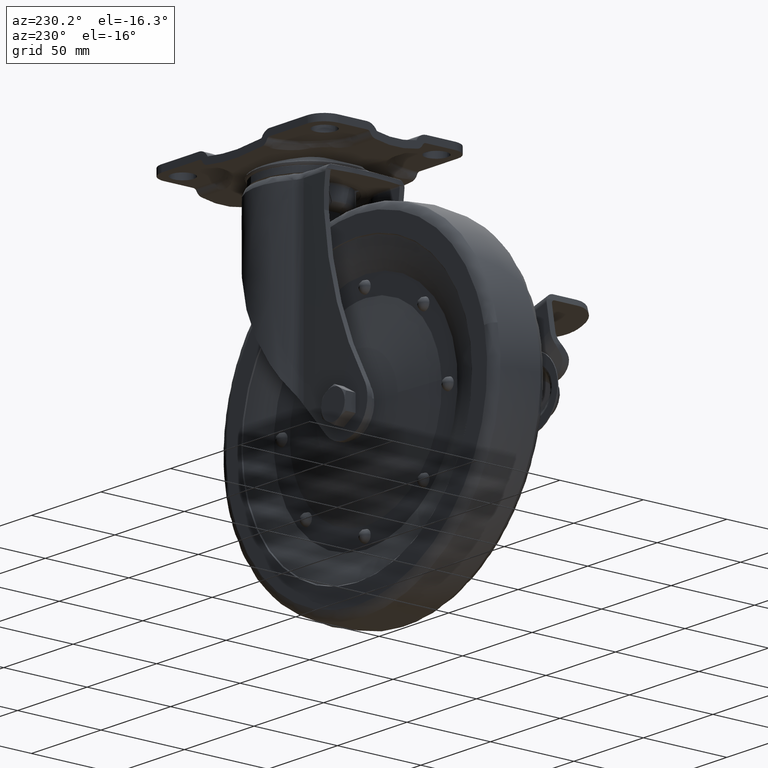
[diagram: clean part render]
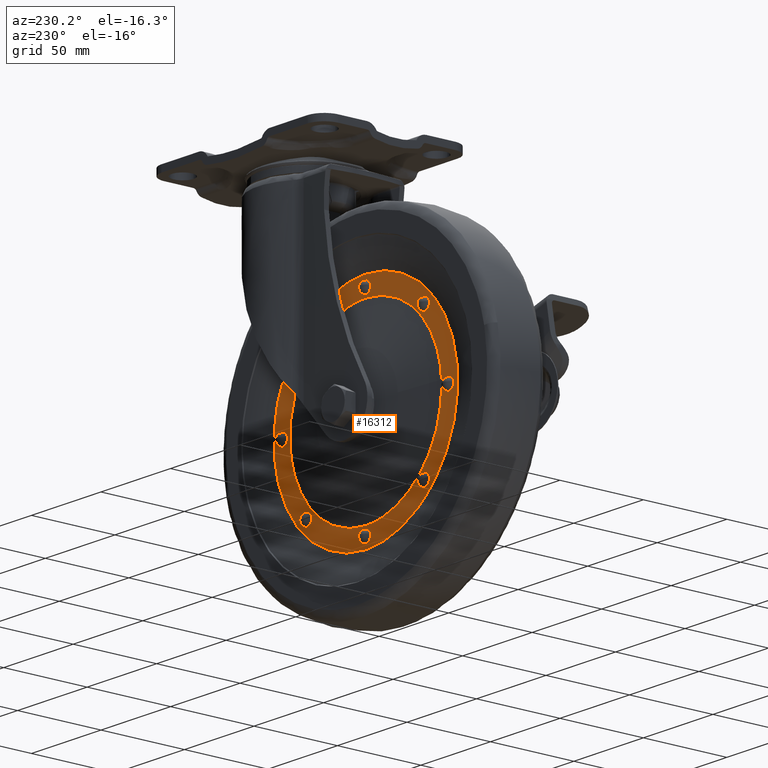
[diagram: same view with one face highlighted and labeled with its STEP entity id]
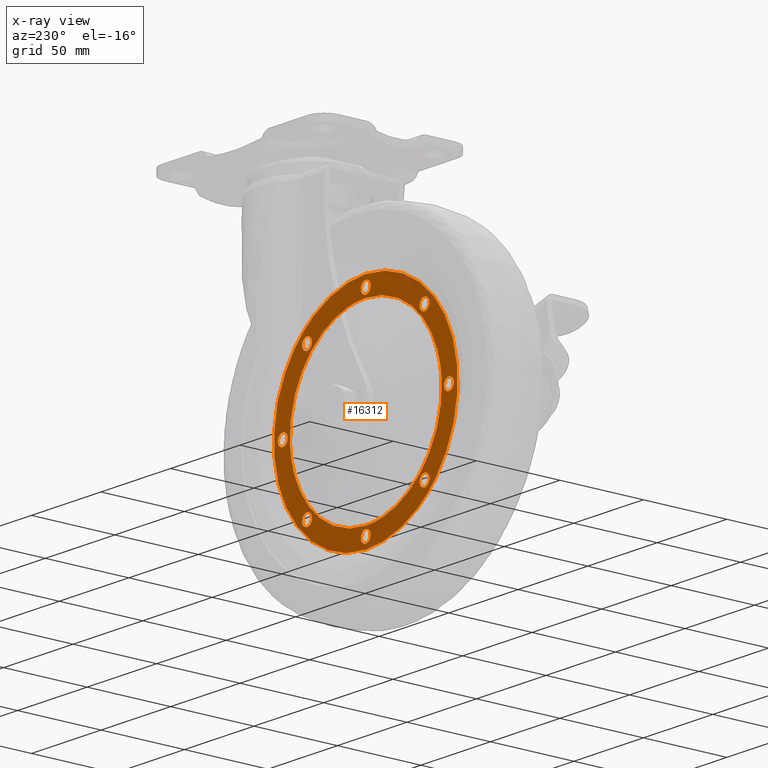
[diagram: x-ray of the same camera — body ghosted, the highlighted face saturated]
A machine part, auxiliary view. The second image highlights one B-rep face of the part: STEP entity #16312.
The next image is the same camera in x-ray: the body ghosted, the highlighted face saturated — about 0% of this face is hidden behind the body in this view.
In plain terms, the highlighted face is a freeform B-spline surface patch.
Its self-contained STEP definition (entity closure, byte-faithful):
#15367=CARTESIAN_POINT('',(-90.496761172573656,10.500000000502331,-190.165149470088610));
#15368=VERTEX_POINT('',#15367);
#15382=CARTESIAN_POINT('',(-53.0,10.499999999999950,-201.829733000000000));
#15383=VERTEX_POINT('',#15382);
#15384=CARTESIAN_POINT('',(-90.496761172573670,10.500000000502334,-190.165149470088690));
#15385=CARTESIAN_POINT('',(-73.562704073049034,10.500000000251145,-201.829733000378500));
#15386=CARTESIAN_POINT('',(-53.0,10.499999999999950,-201.829733000000000));
#15394=(BOUNDED_CURVE()B_SPLINE_CURVE(2,(#15384,#15385,#15386),.UNSPECIFIED.,.F.,.U.)B_SPLINE_CURVE_WITH_KNOTS((3,3),(0.902570046491187,1.0),.UNSPECIFIED.)CURVE()GEOMETRIC_REPRESENTATION_ITEM()RATIONAL_B_SPLINE_CURVE((0.860677560885636,0.885853709231835,1.0))REPRESENTATION_ITEM(''));
#15395=EDGE_CURVE('',#15368,#15383,#15394,.T.);
#15397=CARTESIAN_POINT('',(-15.503238827426349,10.500000000502331,-81.293316529911337));
#15398=VERTEX_POINT('',#15397);
#15399=CARTESIAN_POINT('',(-53.0,10.499999999999950,-201.829733000000000));
#15400=CARTESIAN_POINT('',(-50.269054665054853,10.500000000003190,-201.829771764555890));
#15401=CARTESIAN_POINT('',(-43.824005123820349,10.500000000012310,-201.429973356704690));
#15402=CARTESIAN_POINT('',(-34.492506428127442,10.500000000030839,-199.458430966099600));
#15403=CARTESIAN_POINT('',(-25.992694900659981,10.500000000053120,-196.240142842709300));
#15404=CARTESIAN_POINT('',(-19.600385566640099,10.500000000073440,-192.884544980867190));
#15405=CARTESIAN_POINT('',(-13.921193543899671,10.500000000094181,-189.183337685738790));
#15406=CARTESIAN_POINT('',(-8.557102878133071,10.500000000117071,-184.852469463128500));
#15407=CARTESIAN_POINT('',(-2.570537193624882,10.500000000147111,-178.771452854008400));
#15408=CARTESIAN_POINT('',(2.230199464589279,10.500000000177289,-172.372667557193890));
#15409=CARTESIAN_POINT('',(6.718797275844756,10.500000000212429,-164.483234769258700));
#15410=CARTESIAN_POINT('',(9.849734052629962,10.500000000245080,-156.884303119978400));
#15411=CARTESIAN_POINT('',(12.196426455835301,10.500000000282430,-147.770352042733210));
#15412=CARTESIAN_POINT('',(13.190649145855421,10.500000000315550,-139.394591694129500));
#15413=CARTESIAN_POINT('',(13.067623503837970,10.500000000350591,-130.095061363220400));
#15414=CARTESIAN_POINT('',(11.941013149677611,10.500000000377741,-122.618401140108200));
#15415=CARTESIAN_POINT('',(9.947209768489612,10.500000000403480,-115.231434734829510));
#15416=CARTESIAN_POINT('',(7.303039678046674,10.500000000427120,-108.158738421718790));
#15417=CARTESIAN_POINT('',(3.509790566991151,10.500000000449480,-101.117540916731100));
#15418=CARTESIAN_POINT('',(-1.415422792040370,10.500000000470390,-94.154210183403663));
#15419=CARTESIAN_POINT('',(-7.272057637022831,10.500000000487400,-87.637604030086663));
#15420=CARTESIAN_POINT('',(-12.534348382861610,10.500000000497989,-83.338022490631317));
#15421=CARTESIAN_POINT('',(-15.503238827426349,10.500000000502331,-81.293316529911337));
#15422=B_SPLINE_CURVE_WITH_KNOTS('',3,(#15399,#15400,#15401,#15402,#15403,#15404,#15405,#15406,#15407,#15408,#15409,#15410,#15411,#15412,#15413,#15414,#15415,#15416,#15417,#15418,#15419,#15420,#15421),.UNSPECIFIED.,.F.,.U.,(4,1,1,1,1,1,1,1,1,1,1,1,1,1,1,1,1,1,1,1,4),(2.675591E-009,8.192860480772424,19.335077427898231,28.511203774575652,35.393249197558482,40.964372456816037,48.829573920289562,56.039323972103631,66.526215720541884,72.752813765979269,83.239785941527273,91.104961965750149,100.936458268359900,108.473707912850500,118.960581427294100,123.548590830687400,131.413755573815790,141.572941408855400,147.471809529608210,156.975546236109490,167.790134764452010),.UNSPECIFIED.);
#15423=EDGE_CURVE('',#15383,#15398,#15422,.T.);
#15476=CARTESIAN_POINT('',(-53.0,10.500000000000000,-69.628732999999997));
#15477=VERTEX_POINT('',#15476);
#15478=CARTESIAN_POINT('',(-15.503238827426355,10.500000000502334,-81.293316529911337));
#15479=CARTESIAN_POINT('',(-32.437295926950959,10.500000000251166,-69.628732999621548));
#15480=CARTESIAN_POINT('',(-53.0,10.500000000000000,-69.628732999999997));
#15488=(BOUNDED_CURVE()B_SPLINE_CURVE(2,(#15478,#15479,#15480),.UNSPECIFIED.,.F.,.U.)B_SPLINE_CURVE_WITH_KNOTS((3,3),(0.402570046491187,0.500000000000000),.UNSPECIFIED.)CURVE()GEOMETRIC_REPRESENTATION_ITEM()RATIONAL_B_SPLINE_CURVE((0.860677560885636,0.885853709231835,1.0))REPRESENTATION_ITEM(''));
#15489=EDGE_CURVE('',#15398,#15477,#15488,.T.);
#15491=CARTESIAN_POINT('',(-53.0,10.500000000000000,-69.628732999999997));
#15492=CARTESIAN_POINT('',(-56.167865735049837,10.500000000003720,-69.628557852973501));
#15493=CARTESIAN_POINT('',(-61.411196213104027,10.500000000011370,-70.006465598620281));
#15494=CARTESIAN_POINT('',(-69.893716465525031,10.500000000027670,-71.645404581890446));
#15495=CARTESIAN_POINT('',(-78.957311156254121,10.500000000049511,-74.596484559766409));
#15496=CARTESIAN_POINT('',(-88.573071317451266,10.500000000080130,-79.644328936338582));
#15497=CARTESIAN_POINT('',(-97.543459976800847,10.500000000116470,-86.491273793699847));
#15498=CARTESIAN_POINT('',(-103.932076827580400,10.500000000150170,-93.277496616966488));
#15499=CARTESIAN_POINT('',(-108.451951692713610,10.500000000179361,-99.590930624355650));
#15500=CARTESIAN_POINT('',(-111.835894171692600,10.500000000205340,-105.338176555862700));
#15501=CARTESIAN_POINT('',(-115.288742933626200,10.500000000237799,-112.905774842812210));
#15502=CARTESIAN_POINT('',(-117.879604528793490,10.500000000275220,-121.856591291279300));
#15503=CARTESIAN_POINT('',(-119.113480171625300,10.500000000311671,-131.078961145542910));
#15504=CARTESIAN_POINT('',(-119.172080470425500,10.500000000345381,-139.944044715968890));
#15505=CARTESIAN_POINT('',(-117.995892811804400,10.500000000378270,-148.959494314859910));
#15506=CARTESIAN_POINT('',(-115.245203123982510,10.500000000412291,-158.764672936248100));
#15507=CARTESIAN_POINT('',(-111.179795247394910,10.500000000441119,-167.636353880428200));
#15508=CARTESIAN_POINT('',(-105.713119114665500,10.500000000466530,-175.963694844513810));
#15509=CARTESIAN_POINT('',(-99.142333673478817,10.500000000486709,-183.459681523623200));
#15510=CARTESIAN_POINT('',(-93.645609840234471,10.500000000498121,-187.996547778992410));
#15511=CARTESIAN_POINT('',(-90.496761172573656,10.500000000502331,-190.165149470088610));
#15512=B_SPLINE_CURVE_WITH_KNOTS('',3,(#15491,#15492,#15493,#15494,#15495,#15496,#15497,#15498,#15499,#15500,#15501,#15502,#15503,#15504,#15505,#15506,#15507,#15508,#15509,#15510,#15511),.UNSPECIFIED.,.F.,.U.,(4,1,1,1,1,1,1,1,1,1,1,1,1,1,1,1,1,1,4),(4.577259E-009,9.503575065022375,15.730190872061740,25.889481430874330,38.014963116610090,48.174148715395731,59.644205165029177,65.870823125543268,71.442018176821520,79.634927773272480,90.777175692240391,99.297778620598066,107.490587070842100,117.322020212153500,126.498067563356800,137.968085973637100,146.488664274716600,156.320116431958300,167.790134764448400),.UNSPECIFIED.);
#15513=EDGE_CURVE('',#15477,#15368,#15512,.T.);
#15563=CARTESIAN_POINT('',(-53.0,10.500000000000000,-191.979232999999990));
#15564=VERTEX_POINT('',#15563);
#15565=CARTESIAN_POINT('',(-53.0,10.500000000000000,-198.979232999999990));
#15566=VERTEX_POINT('',#15565);
#15567=CARTESIAN_POINT('',(-53.0,10.500000000000000,-191.979232999999990));
#15568=CARTESIAN_POINT('',(-52.484396898272969,10.500000000000011,-191.978401959729010));
#15569=CARTESIAN_POINT('',(-51.712109675189687,10.500000000000011,-192.153269098158200));
#15570=CARTESIAN_POINT('',(-50.706338974089341,10.500000000000000,-192.772970762506990));
#15571=CARTESIAN_POINT('',(-50.081857024999728,10.500000000000020,-193.461840280421510));
#15572=CARTESIAN_POINT('',(-49.601701123378412,10.500000000000000,-194.445818791425100));
#15573=CARTESIAN_POINT('',(-49.425612959887751,10.499999999999980,-195.538272890937290));
#15574=CARTESIAN_POINT('',(-49.652697101581559,10.500000000000020,-196.678262130606410));
#15575=CARTESIAN_POINT('',(-50.196095267292208,10.499999999999920,-197.665727021834100));
#15576=CARTESIAN_POINT('',(-50.911640818856107,10.500000000000030,-198.346953401770800));
#15577=CARTESIAN_POINT('',(-51.883552114943740,10.499999999999909,-198.851048358568110));
#15578=CARTESIAN_POINT('',(-52.570440454364487,10.500000000000050,-198.979616882277010));
#15579=CARTESIAN_POINT('',(-53.0,10.500000000000000,-198.979232999999990));
#15580=B_SPLINE_CURVE_WITH_KNOTS('',3,(#15567,#15568,#15569,#15570,#15571,#15572,#15573,#15574,#15575,#15576,#15577,#15578,#15579),.UNSPECIFIED.,.F.,.U.,(4,1,1,1,1,1,1,1,1,1,4),(0.000001146569907,1.546269208182812,2.319410850316196,3.522175441709540,4.295288343992217,5.583735576247911,6.786397772745816,7.731428459737487,8.934184746875282,9.707322270065422,10.995850211883830),.UNSPECIFIED.);
#15581=EDGE_CURVE('',#15564,#15566,#15580,.T.);
#15583=CARTESIAN_POINT('',(-53.0,10.500000000000000,-198.979232999999990));
#15584=CARTESIAN_POINT('',(-53.486881125690417,10.500000000000011,-198.979876860499790));
#15585=CARTESIAN_POINT('',(-54.259420741271931,10.500000000000000,-198.815225591884090));
#15586=CARTESIAN_POINT('',(-55.150257550941497,10.500000000000000,-198.281117031015610));
#15587=CARTESIAN_POINT('',(-55.789595838402057,10.499999999999959,-197.657410015287890));
#15588=CARTESIAN_POINT('',(-56.236041625270552,10.500000000000140,-196.912543918635490));
#15589=CARTESIAN_POINT('',(-56.468512671092228,10.499999999999829,-196.110114154549710));
#15590=CARTESIAN_POINT('',(-56.538891941222190,10.500000000000099,-195.163135142412810));
#15591=CARTESIAN_POINT('',(-56.308555118565131,10.500000000000030,-194.138049319952810));
#15592=CARTESIAN_POINT('',(-55.673372963357878,10.499999999999970,-193.135328800766700));
#15593=CARTESIAN_POINT('',(-54.896677458348243,10.500000000000011,-192.481835875381790));
#15594=CARTESIAN_POINT('',(-53.973457287346243,10.499999999999989,-192.072735197671900));
#15595=CARTESIAN_POINT('',(-53.343579368188628,10.500000000000011,-191.979111531955600));
#15596=CARTESIAN_POINT('',(-53.0,10.500000000000000,-191.979232999999990));
#15597=B_SPLINE_CURVE_WITH_KNOTS('',3,(#15583,#15584,#15585,#15586,#15587,#15588,#15589,#15590,#15591,#15592,#15593,#15594,#15595,#15596),.UNSPECIFIED.,.F.,.U.,(4,1,1,1,1,1,1,1,1,1,1,4),(0.000001146589740,1.460299699727537,2.319410850325584,3.092597501773283,4.123549264029553,4.896729287267839,5.583735576247782,6.958290656339021,7.989158940749061,9.105961579477979,9.965103941673327,10.995850211883830),.UNSPECIFIED.);
#15598=EDGE_CURVE('',#15566,#15564,#15597,.T.);
#15647=CARTESIAN_POINT('',(-10.750369824103741,10.500000000000000,-174.478863175896490));
#15648=VERTEX_POINT('',#15647);
#15649=CARTESIAN_POINT('',(-10.750369824103741,10.500000000000000,-181.478863175896490));
#15650=VERTEX_POINT('',#15649);
#15651=CARTESIAN_POINT('',(-10.750369824103741,10.500000000000000,-174.478863175896490));
#15652=CARTESIAN_POINT('',(-10.263553236850671,10.500000000000011,-174.478286519426890));
#15653=CARTESIAN_POINT('',(-9.376306229089856,10.500000000000000,-174.667075736016610));
#15654=CARTESIAN_POINT('',(-8.313186995223630,10.500000000000000,-175.377422641018200));
#15655=CARTESIAN_POINT('',(-7.610760103127451,10.500000000000011,-176.300826340052910));
#15656=CARTESIAN_POINT('',(-7.233352693952241,10.500000000000000,-177.397677485192790));
#15657=CARTESIAN_POINT('',(-7.233389970317425,10.500000000000011,-178.414708293423790));
#15658=CARTESIAN_POINT('',(-7.471543875510313,10.499999999999989,-179.274230601975490));
#15659=CARTESIAN_POINT('',(-7.882583236330567,10.500000000000020,-180.067248203258200));
#15660=CARTESIAN_POINT('',(-8.623956075460267,10.500000000000000,-180.846026521482910));
#15661=CARTESIAN_POINT('',(-9.662325744787953,10.500000000000011,-181.368542962033190));
#15662=CARTESIAN_POINT('',(-10.406796297436820,10.500000000000000,-181.478949315860890));
#15663=CARTESIAN_POINT('',(-10.750369824103741,10.500000000000000,-181.478863175896490));
#15664=B_SPLINE_CURVE_WITH_KNOTS('',3,(#15651,#15652,#15653,#15654,#15655,#15656,#15657,#15658,#15659,#15660,#15661,#15662,#15663),.UNSPECIFIED.,.F.,.U.,(4,1,1,1,1,1,1,1,1,1,4),(0.000001146584516,1.460299699725438,2.663059043100152,3.779900867896752,4.896729287267893,6.099120982796103,6.786397772742766,7.559633770998138,8.762328184177839,9.965103941673617,10.995850211883850),.UNSPECIFIED.);
#15665=EDGE_CURVE('',#15648,#15650,#15664,.T.);
#15667=CARTESIAN_POINT('',(-10.750369824103741,10.500000000000000,-181.478863175896490));
#15668=CARTESIAN_POINT('',(-11.265946663050251,10.500000000000011,-181.479678519440600));
#15669=CARTESIAN_POINT('',(-12.038332384773399,10.499999999999980,-181.304883550151910));
#15670=CARTESIAN_POINT('',(-12.921218636473620,10.500000000000020,-180.760567612086990));
#15671=CARTESIAN_POINT('',(-13.581287431275840,10.499999999999950,-180.116906711930990));
#15672=CARTESIAN_POINT('',(-14.097010954889379,10.500000000000110,-179.206658527829210));
#15673=CARTESIAN_POINT('',(-14.282561517714580,10.499999999999920,-178.208808115072910));
#15674=CARTESIAN_POINT('',(-14.210613541777610,10.500000000000050,-177.233118518634710));
#15675=CARTESIAN_POINT('',(-13.927642899603180,10.499999999999970,-176.410567679568290));
#15676=CARTESIAN_POINT('',(-13.357135058379070,10.500000000000121,-175.578958891476110));
#15677=CARTESIAN_POINT('',(-12.647066809997909,10.499999999999950,-174.981464152438210));
#15678=CARTESIAN_POINT('',(-11.723824230542670,10.500000000000000,-174.572366326073710));
#15679=CARTESIAN_POINT('',(-11.093949182521531,10.500000000000000,-174.478741368463490));
#15680=CARTESIAN_POINT('',(-10.750369824103741,10.500000000000000,-174.478863175896490));
#15681=B_SPLINE_CURVE_WITH_KNOTS('',3,(#15667,#15668,#15669,#15670,#15671,#15672,#15673,#15674,#15675,#15676,#15677,#15678,#15679,#15680),.UNSPECIFIED.,.F.,.U.,(4,1,1,1,1,1,1,1,1,1,1,4),(0.000001146604580,1.546269208208619,2.319410850337620,3.092597501783714,4.295288344002971,5.412117196883907,6.099120982801127,7.216006540259893,7.989158940750507,9.105961579478914,9.965103941673647,10.995850211883861),.UNSPECIFIED.);
#15682=EDGE_CURVE('',#15650,#15648,#15681,.T.);
#15731=CARTESIAN_POINT('',(6.750000000000000,10.500000000000000,-132.229233000000190));
#15732=VERTEX_POINT('',#15731);
#15733=CARTESIAN_POINT('',(6.750000000000000,10.500000000000000,-139.229233000000190));
#15734=VERTEX_POINT('',#15733);
#15735=CARTESIAN_POINT('',(6.750000000000000,10.500000000000000,-132.229233000000190));
#15736=CARTESIAN_POINT('',(7.265587696475274,10.500000000000000,-132.228432924785810));
#15737=CARTESIAN_POINT('',(7.980732705561525,10.499999999999989,-132.390232320039390));
#15738=CARTESIAN_POINT('',(8.800082411059048,10.500000000000011,-132.868077001406990));
#15739=CARTESIAN_POINT('',(9.366628075494001,10.500000000000011,-133.356628738012800));
#15740=CARTESIAN_POINT('',(9.874534332133697,10.499999999999970,-134.059209954989710));
#15741=CARTESIAN_POINT('',(10.176466156882430,10.500000000000060,-134.871829047384410));
#15742=CARTESIAN_POINT('',(10.285670866919890,10.499999999999901,-135.757048101372110));
#15743=CARTESIAN_POINT('',(10.186499585862030,10.500000000000030,-136.561335165880110));
#15744=CARTESIAN_POINT('',(9.855104861764314,10.500000000000041,-137.420405653750090));
#15745=CARTESIAN_POINT('',(9.405140084180520,10.499999999999870,-138.059393909947400));
#15746=CARTESIAN_POINT('',(8.823671852239508,10.500000000000060,-138.573347756323500));
#15747=CARTESIAN_POINT('',(8.009334184354207,10.499999999999931,-139.061709478300090));
#15748=CARTESIAN_POINT('',(7.265586865008476,10.500000000000050,-139.230085561759610));
#15749=CARTESIAN_POINT('',(6.750000000000000,10.500000000000000,-139.229233000000190));
#15750=B_SPLINE_CURVE_WITH_KNOTS('',3,(#15735,#15736,#15737,#15738,#15739,#15740,#15741,#15742,#15743,#15744,#15745,#15746,#15747,#15748,#15749),.UNSPECIFIED.,.F.,.U.,(4,1,1,1,1,1,1,1,1,1,1,1,4),(0.000001146592190,1.546269208199545,2.147613152828770,2.834878277944037,3.779900867902724,4.724861545569117,5.412117196881473,6.442758188765915,7.130047336086413,8.160987212866139,8.762328184178495,9.449602362409561,10.995850211883830),.UNSPECIFIED.);
#15751=EDGE_CURVE('',#15732,#15734,#15750,.T.);
#15753=CARTESIAN_POINT('',(6.750000000000000,10.500000000000000,-139.229233000000190));
#15754=CARTESIAN_POINT('',(6.234383537781362,10.500000000000011,-139.230068085453300));
#15755=CARTESIAN_POINT('',(5.519348908040974,10.500000000000000,-139.068133962467700));
#15756=CARTESIAN_POINT('',(4.550761407826779,10.500000000000000,-138.503728415982690));
#15757=CARTESIAN_POINT('',(3.934362201234035,10.499999999999989,-137.887353550510310));
#15758=CARTESIAN_POINT('',(3.489990435587274,10.500000000000030,-137.079457330805610));
#15759=CARTESIAN_POINT('',(3.281400710152549,10.499999999999989,-136.360105039054990));
#15760=CARTESIAN_POINT('',(3.224236422178058,10.500000000000000,-135.585415512167490));
#15761=CARTESIAN_POINT('',(3.334264881935122,10.499999999999989,-134.843504686549010));
#15762=CARTESIAN_POINT('',(3.624206311627639,10.500000000000050,-134.091802155926900));
#15763=CARTESIAN_POINT('',(4.089019093975436,10.499999999999799,-133.396059920044310));
#15764=CARTESIAN_POINT('',(4.803379539033986,10.500000000000121,-132.764264957889790));
#15765=CARTESIAN_POINT('',(5.719284173748284,10.499999999999959,-132.331208243402900));
#15766=CARTESIAN_POINT('',(6.406412099983009,10.500000000000000,-132.229092162157000));
#15767=CARTESIAN_POINT('',(6.750000000000000,10.500000000000000,-132.229233000000190));
#15768=B_SPLINE_CURVE_WITH_KNOTS('',3,(#15753,#15754,#15755,#15756,#15757,#15758,#15759,#15760,#15761,#15762,#15763,#15764,#15765,#15766,#15767),.UNSPECIFIED.,.F.,.U.,(4,1,1,1,1,1,1,1,1,1,1,1,4),(0.000001146616244,1.546269208219220,2.147613152846637,3.350319613284506,4.123549264046871,4.896729287281570,5.583735576258801,6.442758188771468,7.130047336089771,7.989158940751164,8.934184746875664,9.965103941673535,10.995850211883830),.UNSPECIFIED.);
#15769=EDGE_CURVE('',#15734,#15732,#15768,.T.);
#15818=CARTESIAN_POINT('',(-10.750369824103741,10.500000000000000,-89.979602824103907));
#15819=VERTEX_POINT('',#15818);
#15820=CARTESIAN_POINT('',(-10.750369824103741,10.500000000000000,-96.979602824103907));
#15821=VERTEX_POINT('',#15820);
#15822=CARTESIAN_POINT('',(-10.750369824103741,10.500000000000000,-89.979602824103907));
#15823=CARTESIAN_POINT('',(-10.378135739327011,10.500000000000011,-89.979391814021795));
#15824=CARTESIAN_POINT('',(-9.691057339760189,10.499999999999989,-90.090270274202439));
#15825=CARTESIAN_POINT('',(-8.886050006645244,10.500000000000030,-90.483178959032756));
#15826=CARTESIAN_POINT('',(-8.257713940300693,10.499999999999970,-90.986089698123806));
#15827=CARTESIAN_POINT('',(-7.818439459126678,10.500000000000011,-91.521358341781848));
#15828=CARTESIAN_POINT('',(-7.474308267420915,10.500000000000041,-92.184717628617676));
#15829=CARTESIAN_POINT('',(-7.281807820624501,10.499999999999829,-92.848723106888684));
#15830=CARTESIAN_POINT('',(-7.215919819642969,10.500000000000110,-93.738237687986725));
#15831=CARTESIAN_POINT('',(-7.402989835980178,10.499999999999950,-94.678654779935073));
#15832=CARTESIAN_POINT('',(-7.849060883435297,10.500000000000000,-95.488711568568149));
#15833=CARTESIAN_POINT('',(-8.401212715813012,10.499999999999950,-96.113150846196817));
#15834=CARTESIAN_POINT('',(-9.056914273306580,10.500000000000030,-96.587169411076673));
#15835=CARTESIAN_POINT('',(-9.891406610867204,10.499999999999970,-96.908948722472616));
#15836=CARTESIAN_POINT('',(-10.464032890565219,10.500000000000011,-96.979664933838535));
#15837=CARTESIAN_POINT('',(-10.750369824103741,10.500000000000000,-96.979602824103907));
#15838=B_SPLINE_CURVE_WITH_KNOTS('',3,(#15822,#15823,#15824,#15825,#15826,#15827,#15828,#15829,#15830,#15831,#15832,#15833,#15834,#15835,#15836,#15837),.UNSPECIFIED.,.F.,.U.,(4,1,1,1,1,1,1,1,1,1,1,1,1,4),(0.000001146607399,1.116649721075717,2.061677953073586,2.663059043114716,3.522175441726818,4.123549264040794,4.896729287277000,5.583735576254651,6.786397772747464,7.731428459737538,8.332805387128898,9.277825880604835,10.136836122209870,10.995850211883830),.UNSPECIFIED.);
#15839=EDGE_CURVE('',#15819,#15821,#15838,.T.);
#15841=CARTESIAN_POINT('',(-10.750369824103741,10.500000000000000,-96.979602824103907));
#15842=CARTESIAN_POINT('',(-11.237247392618089,10.500000000000011,-96.980240507727970));
#15843=CARTESIAN_POINT('',(-12.009790627848080,10.500000000000000,-96.815594799020829));
#15844=CARTESIAN_POINT('',(-12.900639591752840,10.500000000000000,-96.281497668455486));
#15845=CARTESIAN_POINT('',(-13.436731789189009,10.500000000000000,-95.758328883724360));
#15846=CARTESIAN_POINT('',(-13.892123522956799,10.499999999999980,-95.094776777784020));
#15847=CARTESIAN_POINT('',(-14.194174134534380,10.500000000000030,-94.311648597885153));
#15848=CARTESIAN_POINT('',(-14.296122325544030,10.500000000000050,-93.277974951833585));
#15849=CARTESIAN_POINT('',(-14.109055658270080,10.499999999999950,-92.337598405733530));
#15850=CARTESIAN_POINT('',(-13.644547167791639,10.499999999999920,-91.442470312625204));
#15851=CARTESIAN_POINT('',(-12.983684385105470,10.500000000000000,-90.713153171032104));
#15852=CARTESIAN_POINT('',(-11.981403276848420,10.500000000000000,-90.129017311060522));
#15853=CARTESIAN_POINT('',(-11.179919135974490,10.500000000000000,-89.979263956621807));
#15854=CARTESIAN_POINT('',(-10.750369824103741,10.500000000000000,-89.979602824103907));
#15855=B_SPLINE_CURVE_WITH_KNOTS('',3,(#15841,#15842,#15843,#15844,#15845,#15846,#15847,#15848,#15849,#15850,#15851,#15852,#15853,#15854),.UNSPECIFIED.,.F.,.U.,(4,1,1,1,1,1,1,1,1,1,1,4),(0.000001146610533,1.460299699745704,2.319410850341987,3.092597501787472,3.693945324797638,4.724861545573166,5.583735576253190,6.786397772747181,7.559633771000999,8.590538598566226,9.707322270065914,10.995850211883830),.UNSPECIFIED.);
#15856=EDGE_CURVE('',#15821,#15819,#15855,.T.);
#15905=CARTESIAN_POINT('',(-53.0,10.500000000000000,-72.479233000000093));
#15906=VERTEX_POINT('',#15905);
#15907=CARTESIAN_POINT('',(-53.0,10.500000000000000,-79.479233000000093));
#15908=VERTEX_POINT('',#15907);
#15909=CARTESIAN_POINT('',(-53.0,10.500000000000000,-72.479233000000093));
#15910=CARTESIAN_POINT('',(-52.513149543141623,10.499999999999989,-72.478623931973999));
#15911=CARTESIAN_POINT('',(-51.683268180507902,10.500000000000011,-72.655357824036003));
#15912=CARTESIAN_POINT('',(-50.729544327780701,10.499999999999989,-73.259439196396556));
#15913=CARTESIAN_POINT('',(-50.128940279533332,10.499999999999989,-73.922235766796518));
#15914=CARTESIAN_POINT('',(-49.740004626983243,10.500000000000041,-74.628976133731840));
#15915=CARTESIAN_POINT('',(-49.483023565327109,10.499999999999940,-75.514371957508502));
#15916=CARTESIAN_POINT('',(-49.483032667372143,10.499999999999970,-76.415036244820243));
#15917=CARTESIAN_POINT('',(-49.721143535312969,10.500000000000099,-77.274636367713029));
#15918=CARTESIAN_POINT('',(-50.092539940094653,10.499999999999940,-77.990776988536240));
#15919=CARTESIAN_POINT('',(-50.647703621587731,10.499999999999970,-78.618553264034688));
#15920=CARTESIAN_POINT('',(-51.360414756677109,10.500000000000121,-79.107519269858443));
#15921=CARTESIAN_POINT('',(-52.141035301144832,10.499999999999931,-79.408582759993905));
#15922=CARTESIAN_POINT('',(-52.713663049486208,10.500000000000011,-79.479295578232055));
#15923=CARTESIAN_POINT('',(-53.0,10.500000000000000,-79.479233000000093));
#15924=B_SPLINE_CURVE_WITH_KNOTS('',3,(#15909,#15910,#15911,#15912,#15913,#15914,#15915,#15916,#15917,#15918,#15919,#15920,#15921,#15922,#15923),.UNSPECIFIED.,.F.,.U.,(4,1,1,1,1,1,1,1,1,1,1,1,4),(0.000001146605342,1.460299699740981,2.491251260108331,3.350319613274320,4.123549264037609,4.896729287274061,6.099120982800993,6.786397772746838,7.559633771000764,8.504617846667307,9.277825880605278,10.136836122209941,10.995850211883839),.UNSPECIFIED.);
#15925=EDGE_CURVE('',#15906,#15908,#15924,.T.);
#15927=CARTESIAN_POINT('',(-53.0,10.500000000000000,-79.479233000000093));
#15928=CARTESIAN_POINT('',(-53.486819752370792,10.500000000000000,-79.479802273691504));
#15929=CARTESIAN_POINT('',(-54.374053798170117,10.500000000000011,-79.291042573156588));
#15930=CARTESIAN_POINT('',(-55.413008597124062,10.499999999999989,-78.596789795335738));
#15931=CARTESIAN_POINT('',(-56.071820712967281,10.500000000000020,-77.752272206136254));
#15932=CARTESIAN_POINT('',(-56.458159278504773,10.500000000000050,-76.786431987033396));
#15933=CARTESIAN_POINT('',(-56.537763611077160,10.499999999999870,-75.861931492122224));
#15934=CARTESIAN_POINT('',(-56.370484482156428,10.500000000000171,-74.898005364735056));
#15935=CARTESIAN_POINT('',(-56.008306646227091,10.499999999999771,-74.106994775763283));
#15936=CARTESIAN_POINT('',(-55.433069285480769,10.500000000000069,-73.423672564812293));
#15937=CARTESIAN_POINT('',(-54.745284803521322,10.499999999999959,-72.900235919246853));
#15938=CARTESIAN_POINT('',(-53.916294552737646,10.500000000000020,-72.556854920280159));
#15939=CARTESIAN_POINT('',(-53.286327379005307,10.500000000000000,-72.479192292966218));
#15940=CARTESIAN_POINT('',(-53.0,10.500000000000000,-72.479233000000093));
#15941=B_SPLINE_CURVE_WITH_KNOTS('',3,(#15927,#15928,#15929,#15930,#15931,#15932,#15933,#15934,#15935,#15936,#15937,#15938,#15939,#15940),.UNSPECIFIED.,.F.,.U.,(4,1,1,1,1,1,1,1,1,1,1,4),(0.000001146596224,1.460299699735419,2.663059043108259,3.693945324792217,4.638916925089012,5.755493460192554,6.442758188763564,7.559633770997992,8.332805387127447,9.105961579477905,10.136836122209660,10.995850211883820),.UNSPECIFIED.);
#15942=EDGE_CURVE('',#15908,#15906,#15941,.T.);
#15991=CARTESIAN_POINT('',(-95.249630175896201,10.500000000000000,-89.979602824103907));
#15992=VERTEX_POINT('',#15991);
#15993=CARTESIAN_POINT('',(-95.249630175896201,10.500000000000000,-96.979602824103907));
#15994=VERTEX_POINT('',#15993);
#15995=CARTESIAN_POINT('',(-95.249630175896201,10.500000000000000,-89.979602824103907));
#15996=CARTESIAN_POINT('',(-94.820085091824524,10.499999999999989,-89.979243851061995));
#15997=CARTESIAN_POINT('',(-94.047209351900904,10.500000000000050,-90.123737095333723));
#15998=CARTESIAN_POINT('',(-93.014517738865692,10.499999999999959,-90.708686516812605));
#15999=CARTESIAN_POINT('',(-92.331481101126229,10.500000000000030,-91.462224640081786));
#16000=CARTESIAN_POINT('',(-91.851330446980796,10.500000000000011,-92.446183633667559));
#16001=CARTESIAN_POINT('',(-91.675253838856662,10.499999999999959,-93.538642229397112));
#16002=CARTESIAN_POINT('',(-91.907967680152353,10.500000000000011,-94.707157884664838));
#16003=CARTESIAN_POINT('',(-92.435923505603270,10.500000000000000,-95.639096683773118));
#16004=CARTESIAN_POINT('',(-93.077193086915869,10.500000000000000,-96.264593922915992));
#16005=CARTESIAN_POINT('',(-93.990318819029085,10.500000000000011,-96.812049082512516));
#16006=CARTESIAN_POINT('',(-94.734035941568052,10.500000000000000,-96.980463143782970));
#16007=CARTESIAN_POINT('',(-95.249630175896201,10.500000000000000,-96.979602824103907));
#16008=B_SPLINE_CURVE_WITH_KNOTS('',3,(#15995,#15996,#15997,#15998,#15999,#16000,#16001,#16002,#16003,#16004,#16005,#16006,#16007),.UNSPECIFIED.,.F.,.U.,(4,1,1,1,1,1,1,1,1,1,4),(0.000001146595073,1.288555223781478,2.319410850330057,3.522175441717312,4.295288343997243,5.583735576248667,6.786397772744246,7.817358360039075,8.762328184176230,9.449602362408349,10.995850211883830),.UNSPECIFIED.);
#16009=EDGE_CURVE('',#15992,#15994,#16008,.T.);
#16011=CARTESIAN_POINT('',(-95.249630175896201,10.500000000000000,-96.979602824103907));
#16012=CARTESIAN_POINT('',(-95.679190739308865,10.500000000000011,-96.979980146994578));
#16013=CARTESIAN_POINT('',(-96.509321468356148,10.500000000000000,-96.824783794093733));
#16014=CARTESIAN_POINT('',(-97.431559011792032,10.500000000000011,-96.272164133110707));
#16015=CARTESIAN_POINT('',(-98.165771091765535,10.500000000000000,-95.500960220085133));
#16016=CARTESIAN_POINT('',(-98.621778128207140,10.500000000000011,-94.622189050436077));
#16017=CARTESIAN_POINT('',(-98.777499603312123,10.500000000000011,-93.652092909750351));
#16018=CARTESIAN_POINT('',(-98.720316179101459,10.499999999999980,-92.877438137324447));
#16019=CARTESIAN_POINT('',(-98.505610756215617,10.500000000000060,-92.100941582780592));
#16020=CARTESIAN_POINT('',(-98.091837068455376,10.499999999999840,-91.370537184696857));
#16021=CARTESIAN_POINT('',(-97.508218543664228,10.500000000000030,-90.772581705887390));
#16022=CARTESIAN_POINT('',(-96.862280496118942,10.500000000000060,-90.340947746107972));
#16023=CARTESIAN_POINT('',(-96.108603178054508,10.499999999999840,-90.050244419377748));
#16024=CARTESIAN_POINT('',(-95.535965558588032,10.500000000000179,-89.979541600399770));
#16025=CARTESIAN_POINT('',(-95.249630175896201,10.500000000000000,-89.979602824103907));
#16026=B_SPLINE_CURVE_WITH_KNOTS('',3,(#16011,#16012,#16013,#16014,#16015,#16016,#16017,#16018,#16019,#16020,#16021,#16022,#16023,#16024,#16025),.UNSPECIFIED.,.F.,.U.,(4,1,1,1,1,1,1,1,1,1,1,1,4),(0.000001146649570,1.288555223827594,2.491251260139652,3.178525728499392,4.467190310882878,5.412117196901383,6.099120982816362,6.786397772760029,7.817358360052195,8.590538598574550,9.277825880611099,10.136836122212859,10.995850211883489),.UNSPECIFIED.);
#16027=EDGE_CURVE('',#15994,#15992,#16026,.T.);
#16076=CARTESIAN_POINT('',(-112.750000000000000,10.500000000000000,-132.229233000000190));
#16077=VERTEX_POINT('',#16076);
#16078=CARTESIAN_POINT('',(-112.750000000000000,10.500000000000000,-139.229233000000190));
#16079=VERTEX_POINT('',#16078);
#16080=CARTESIAN_POINT('',(-112.750000000000000,10.500000000000000,-132.229233000000190));
#16081=CARTESIAN_POINT('',(-112.263101642340000,10.500000000000000,-132.228592072195710));
#16082=CARTESIAN_POINT('',(-111.576484643363700,10.500000000000020,-132.374977958269510));
#16083=CARTESIAN_POINT('',(-110.669971037509500,10.499999999999989,-132.873943505668190));
#16084=CARTESIAN_POINT('',(-110.112367100002200,10.500000000000020,-133.379328686072400));
#16085=CARTESIAN_POINT('',(-109.608263230231500,10.499999999999970,-134.114074492279600));
#16086=CARTESIAN_POINT('',(-109.306185238869600,10.500000000000041,-134.897185756886610));
#16087=CARTESIAN_POINT('',(-109.204250570573090,10.500000000000030,-135.930857870644300));
#16088=CARTESIAN_POINT('',(-109.391310062632100,10.499999999999970,-136.871245894231490));
#16089=CARTESIAN_POINT('',(-109.855825732548990,10.500000000000000,-137.766352602674200));
#16090=CARTESIAN_POINT('',(-110.477856908086690,10.500000000000020,-138.452759090724410));
#16091=CARTESIAN_POINT('',(-111.461972855710300,10.499999999999980,-139.059085993771110));
#16092=CARTESIAN_POINT('',(-112.263119069911800,10.500000000000011,-139.229906302359810));
#16093=CARTESIAN_POINT('',(-112.750000000000000,10.500000000000000,-139.229233000000190));
#16094=B_SPLINE_CURVE_WITH_KNOTS('',3,(#16080,#16081,#16082,#16083,#16084,#16085,#16086,#16087,#16088,#16089,#16090,#16091,#16092,#16093),.UNSPECIFIED.,.F.,.U.,(4,1,1,1,1,1,1,1,1,1,1,4),(0.000001146581713,1.460299699723631,2.061677953055773,3.092597501771917,3.693945324784500,4.724861545562335,5.583735576244155,6.786397772740168,7.559633770996024,8.590538598564667,9.535554477967791,10.995850211883820),.UNSPECIFIED.);
#16095=EDGE_CURVE('',#16077,#16079,#16094,.T.);
#16097=CARTESIAN_POINT('',(-112.750000000000000,10.500000000000000,-139.229233000000190));
#16098=CARTESIAN_POINT('',(-113.122212253843600,10.500000000000000,-139.229379948091890));
#16099=CARTESIAN_POINT('',(-113.895286817444300,10.500000000000011,-139.104878362176010));
#16100=CARTESIAN_POINT('',(-114.843494559967200,10.500000000000020,-138.598084659090400));
#16101=CARTESIAN_POINT('',(-115.639279946100900,10.500000000000011,-137.802329748774410));
#16102=CARTESIAN_POINT('',(-116.149030757835700,10.499999999999989,-136.820145867868210));
#16103=CARTESIAN_POINT('',(-116.296986007759700,10.500000000000020,-135.728139198525500));
#16104=CARTESIAN_POINT('',(-116.144715648968400,10.500000000000011,-134.700714324462010));
#16105=CARTESIAN_POINT('',(-115.758258646174200,10.500000000000000,-133.856998235894390));
#16106=CARTESIAN_POINT('',(-115.220162018656000,10.500000000000000,-133.217758065655400));
#16107=CARTESIAN_POINT('',(-114.659179024269210,10.500000000000011,-132.768796933265410));
#16108=CARTESIAN_POINT('',(-113.866474986257500,10.500000000000000,-132.357384828792900));
#16109=CARTESIAN_POINT('',(-113.179559201908800,10.500000000000011,-132.228851980879400));
#16110=CARTESIAN_POINT('',(-112.750000000000000,10.500000000000000,-132.229233000000190));
#16111=B_SPLINE_CURVE_WITH_KNOTS('',3,(#16097,#16098,#16099,#16100,#16101,#16102,#16103,#16104,#16105,#16106,#16107,#16108,#16109,#16110),.UNSPECIFIED.,.F.,.U.,(4,1,1,1,1,1,1,1,1,1,1,4),(0.000001146578718,1.116649721051074,2.319410850319363,3.178525728455558,4.467190310848658,5.583735576242703,6.442758188758891,7.559633770994900,8.332805387125628,8.934184746873726,9.707322270065404,10.995850211883830),.UNSPECIFIED.);
#16112=EDGE_CURVE('',#16079,#16077,#16111,.T.);
#16161=CARTESIAN_POINT('',(-95.249630175896300,10.500000000000000,-174.478863175896490));
#16162=VERTEX_POINT('',#16161);
#16163=CARTESIAN_POINT('',(-95.249630175896300,10.500000000000000,-181.478863175896490));
#16164=VERTEX_POINT('',#16163);
#16165=CARTESIAN_POINT('',(-95.249630175896300,10.500000000000000,-174.478863175896490));
#16166=CARTESIAN_POINT('',(-94.877417807164193,10.500000000000011,-174.478715762835890));
#16167=CARTESIAN_POINT('',(-94.104340226522638,10.499999999999989,-174.603220145113200));
#16168=CARTESIAN_POINT('',(-93.181749800132323,10.500000000000011,-175.096289126520700));
#16169=CARTESIAN_POINT('',(-92.501362988783328,10.499999999999970,-175.760490766976690));
#16170=CARTESIAN_POINT('',(-92.084629286419784,10.500000000000091,-176.418609039268090));
#16171=CARTESIAN_POINT('',(-91.784030802848804,10.499999999999959,-177.258367706374090));
#16172=CARTESIAN_POINT('',(-91.701859600309788,10.500000000000000,-178.211758936571810));
#16173=CARTESIAN_POINT('',(-91.930214412816710,10.500000000000030,-179.228502105541510));
#16174=CARTESIAN_POINT('',(-92.445716713076280,10.499999999999980,-180.165359568604910));
#16175=CARTESIAN_POINT('',(-93.161277224496672,10.500000000000020,-180.846561735288190));
#16176=CARTESIAN_POINT('',(-94.133169406648449,10.499999999999950,-181.350736483335990));
#16177=CARTESIAN_POINT('',(-94.820079735577750,10.500000000000091,-181.479192757091710));
#16178=CARTESIAN_POINT('',(-95.249630175896300,10.500000000000000,-181.478863175896490));
#16179=B_SPLINE_CURVE_WITH_KNOTS('',3,(#16165,#16166,#16167,#16168,#16169,#16170,#16171,#16172,#16173,#16174,#16175,#16176,#16177,#16178),.UNSPECIFIED.,.F.,.U.,(4,1,1,1,1,1,1,1,1,1,1,4),(0.000001146678512,1.116649721140332,2.319410850398366,3.092597501840768,3.951679481090850,4.638916925138614,5.755493460235657,6.786397772778484,7.731428459762514,8.934184746891333,9.707322270076169,10.995850211883850),.UNSPECIFIED.);
#16180=EDGE_CURVE('',#16162,#16164,#16179,.T.);
#16182=CARTESIAN_POINT('',(-95.249630175896300,10.500000000000000,-181.478863175896490));
#16183=CARTESIAN_POINT('',(-95.765248112933008,10.500000000000000,-181.479699013091500));
#16184=CARTESIAN_POINT('',(-96.480281124597951,10.500000000000000,-181.317762748842990));
#16185=CARTESIAN_POINT('',(-97.448868463300911,10.499999999999989,-180.753359499170610));
#16186=CARTESIAN_POINT('',(-98.065269708695780,10.499999999999980,-180.136982368393690));
#16187=CARTESIAN_POINT('',(-98.509636683356305,10.500000000000050,-179.329089365857100));
#16188=CARTESIAN_POINT('',(-98.718210836646335,10.499999999999959,-178.609736529992200));
#16189=CARTESIAN_POINT('',(-98.779724003769743,10.499999999999989,-177.777606608053500));
#16190=CARTESIAN_POINT('',(-98.636220494706066,10.500000000000220,-176.950621833067910));
#16191=CARTESIAN_POINT('',(-98.300175633119338,10.499999999999631,-176.217237579150800));
#16192=CARTESIAN_POINT('',(-97.879281668965788,10.500000000000281,-175.634922312994800));
#16193=CARTESIAN_POINT('',(-97.246150998047071,10.499999999999879,-175.046413786831890));
#16194=CARTESIAN_POINT('',(-96.337714735785951,10.499999999999901,-174.589181346340500));
#16195=CARTESIAN_POINT('',(-95.593196373844194,10.500000000000140,-174.478777086725590));
#16196=CARTESIAN_POINT('',(-95.249630175896300,10.500000000000000,-174.478863175896490));
#16197=B_SPLINE_CURVE_WITH_KNOTS('',3,(#16182,#16183,#16184,#16185,#16186,#16187,#16188,#16189,#16190,#16191,#16192,#16193,#16194,#16195,#16196),.UNSPECIFIED.,.F.,.U.,(4,1,1,1,1,1,1,1,1,1,1,1,4),(0.000001146687273,1.546269208281034,2.147613152904112,3.350319613334396,4.123549264091942,4.896729287322565,5.583735576294479,6.614681054097225,7.387775395005626,7.989158940769737,8.762328184193031,9.965103941680290,10.995850211883200),.UNSPECIFIED.);
#16198=EDGE_CURVE('',#16164,#16162,#16197,.T.);
#16203=CARTESIAN_POINT('',(-125.654551771204200,10.500000000000000,-208.433172693768800));
#16204=CARTESIAN_POINT('',(-125.654551771204200,10.500000000000000,-63.025289760324050));
#16205=CARTESIAN_POINT('',(19.654555313070080,10.500000000000000,-208.433172693768910));
#16206=CARTESIAN_POINT('',(19.654555313070080,10.500000000000000,-63.025289760324050));
#16207=B_SPLINE_SURFACE_WITH_KNOTS('',1,1,((#16203,#16205),(#16204,#16206)),.UNSPECIFIED.,.F.,.F.,.U.,(2,2),(2,2),(0.0,145.407882933444800),(0.0,145.309107084274300),.UNSPECIFIED.);
#16208=ORIENTED_EDGE('',*,*,#15395,.F.);
#16209=ORIENTED_EDGE('',*,*,#15513,.F.);
#16210=ORIENTED_EDGE('',*,*,#15489,.F.);
#16211=ORIENTED_EDGE('',*,*,#15423,.F.);
#16212=EDGE_LOOP('',(#16208,#16209,#16210,#16211));
#16213=FACE_OUTER_BOUND('',#16212,.T.);
#16214=ORIENTED_EDGE('',*,*,#15665,.F.);
#16215=ORIENTED_EDGE('',*,*,#15682,.F.);
#16216=EDGE_LOOP('',(#16214,#16215));
#16217=FACE_BOUND('',#16216,.T.);
#16218=ORIENTED_EDGE('',*,*,#15751,.F.);
#16219=ORIENTED_EDGE('',*,*,#15769,.F.);
#16220=EDGE_LOOP('',(#16218,#16219));
#16221=FACE_BOUND('',#16220,.T.);
#16222=ORIENTED_EDGE('',*,*,#15839,.F.);
#16223=ORIENTED_EDGE('',*,*,#15856,.F.);
#16224=EDGE_LOOP('',(#16222,#16223));
#16225=FACE_BOUND('',#16224,.T.);
#16226=ORIENTED_EDGE('',*,*,#15925,.F.);
#16227=ORIENTED_EDGE('',*,*,#15942,.F.);
#16228=EDGE_LOOP('',(#16226,#16227));
#16229=FACE_BOUND('',#16228,.T.);
#16230=ORIENTED_EDGE('',*,*,#16009,.F.);
#16231=ORIENTED_EDGE('',*,*,#16027,.F.);
#16232=EDGE_LOOP('',(#16230,#16231));
#16233=FACE_BOUND('',#16232,.T.);
#16234=ORIENTED_EDGE('',*,*,#16095,.F.);
#16235=ORIENTED_EDGE('',*,*,#16112,.F.);
#16236=EDGE_LOOP('',(#16234,#16235));
#16237=FACE_BOUND('',#16236,.T.);
#16238=ORIENTED_EDGE('',*,*,#16180,.F.);
#16239=ORIENTED_EDGE('',*,*,#16198,.F.);
#16240=EDGE_LOOP('',(#16238,#16239));
#16241=FACE_BOUND('',#16240,.T.);
#16242=ORIENTED_EDGE('',*,*,#15581,.F.);
#16243=ORIENTED_EDGE('',*,*,#15598,.F.);
#16244=EDGE_LOOP('',(#16242,#16243));
#16245=FACE_BOUND('',#16244,.T.);
#16246=CARTESIAN_POINT('',(-53.0,10.500000000000000,-81.118932999999998));
#16247=VERTEX_POINT('',#16246);
#16248=CARTESIAN_POINT('',(-107.508433925223200,10.500001448650760,-132.395357114731210));
#16249=VERTEX_POINT('',#16248);
#16250=CARTESIAN_POINT('',(-53.0,10.500000000000000,-81.118932999999998));
#16251=CARTESIAN_POINT('',(-104.372239603727370,10.500000724325384,-81.118933214828715));
#16252=CARTESIAN_POINT('',(-107.508433925223160,10.500001448650764,-132.395357114731210));
#16260=(BOUNDED_CURVE()B_SPLINE_CURVE(2,(#16250,#16251,#16252),.UNSPECIFIED.,.F.,.U.)B_SPLINE_CURVE_WITH_KNOTS((3,3),(0.500000000000000,0.739332970926959),.UNSPECIFIED.)CURVE()GEOMETRIC_REPRESENTATION_ITEM()RATIONAL_B_SPLINE_CURVE((1.0,0.719603983108067,0.976072060286790))REPRESENTATION_ITEM(''));
#16261=EDGE_CURVE('',#16247,#16249,#16260,.T.);
#16262=ORIENTED_EDGE('',*,*,#16261,.T.);
#16263=CARTESIAN_POINT('',(-53.0,10.500000000000000,-190.339532999999990));
#16264=VERTEX_POINT('',#16263);
#16265=CARTESIAN_POINT('',(-107.508433925223160,10.500001448650764,-132.395357114731210));
#16266=CARTESIAN_POINT('',(-107.610293076108680,10.500001427832824,-134.060739229581600));
#16267=CARTESIAN_POINT('',(-107.610293183422800,10.500001405702699,-135.729233416919410));
#16268=CARTESIAN_POINT('',(-107.610296695843960,10.500000681377315,-190.339533202090620));
#16269=CARTESIAN_POINT('',(-53.0,10.500000000000000,-190.339532999999990));
#16277=(BOUNDED_CURVE()B_SPLINE_CURVE(2,(#16265,#16266,#16267,#16268,#16269),.UNSPECIFIED.,.F.,.U.)B_SPLINE_CURVE_WITH_KNOTS((3,2,3),(0.739332970926959,0.750000000000000,1.0),.UNSPECIFIED.)CURVE()GEOMETRIC_REPRESENTATION_ITEM()RATIONAL_B_SPLINE_CURVE((0.976072060286790,0.987502798078481,1.0,0.707106781186548,1.0))REPRESENTATION_ITEM(''));
#16278=EDGE_CURVE('',#16249,#16264,#16277,.T.);
#16279=ORIENTED_EDGE('',*,*,#16278,.T.);
#16280=CARTESIAN_POINT('',(1.508433925223173,10.500001448650760,-139.063108885268800));
#16281=VERTEX_POINT('',#16280);
#16282=CARTESIAN_POINT('',(-53.0,10.500000000000000,-190.339532999999990));
#16283=CARTESIAN_POINT('',(-1.627760396272649,10.500000724325382,-190.339532785171310));
#16284=CARTESIAN_POINT('',(1.508433925223174,10.500001448650762,-139.063108885268780));
#16292=(BOUNDED_CURVE()B_SPLINE_CURVE(2,(#16282,#16283,#16284),.UNSPECIFIED.,.F.,.U.)B_SPLINE_CURVE_WITH_KNOTS((3,3),(0.0,0.239332970926959),.UNSPECIFIED.)CURVE()GEOMETRIC_REPRESENTATION_ITEM()RATIONAL_B_SPLINE_CURVE((1.0,0.719603983108067,0.976072060286790))REPRESENTATION_ITEM(''));
#16293=EDGE_CURVE('',#16264,#16281,#16292,.T.);
#16294=ORIENTED_EDGE('',*,*,#16293,.T.);
#16295=CARTESIAN_POINT('',(1.508433925223174,10.500001448650762,-139.063108885268780));
#16296=CARTESIAN_POINT('',(1.610293076108717,10.500001427832824,-137.397726770418440));
#16297=CARTESIAN_POINT('',(1.610293183422800,10.500001405702699,-135.729232583080600));
#16298=CARTESIAN_POINT('',(1.610296695843958,10.500000681377315,-81.118932797909309));
#16299=CARTESIAN_POINT('',(-53.0,10.500000000000000,-81.118932999999998));
#16307=(BOUNDED_CURVE()B_SPLINE_CURVE(2,(#16295,#16296,#16297,#16298,#16299),.UNSPECIFIED.,.F.,.U.)B_SPLINE_CURVE_WITH_KNOTS((3,2,3),(0.239332970926959,0.250000000000000,0.500000000000000),.UNSPECIFIED.)CURVE()GEOMETRIC_REPRESENTATION_ITEM()RATIONAL_B_SPLINE_CURVE((0.976072060286790,0.987502798078481,1.0,0.707106781186548,1.0))REPRESENTATION_ITEM(''));
#16308=EDGE_CURVE('',#16281,#16247,#16307,.T.);
#16309=ORIENTED_EDGE('',*,*,#16308,.T.);
#16310=EDGE_LOOP('',(#16262,#16279,#16294,#16309));
#16311=FACE_BOUND('',#16310,.T.);
#16312=ADVANCED_FACE('',(#16213,#16217,#16221,#16225,#16229,#16233,#16237,#16241,#16245,#16311),#16207,.T.);